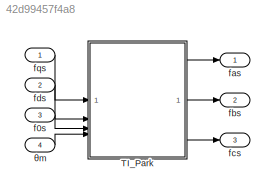
MODEL slx_42d99457f4a8
KIND model
CONFIG AbsTol = auto
CONFIG EnableMultiTasking = off
CONFIG FixedStep = auto
CONFIG MaxStep = auto
CONFIG MinStep = auto
CONFIG RelTol = 1e-3
CONFIG SampleTimeConstraint = Unconstrained
CONFIG SolverName = VariableStepAuto
CONFIG StartTime = 0.0
CONFIG StopTime = 10.0
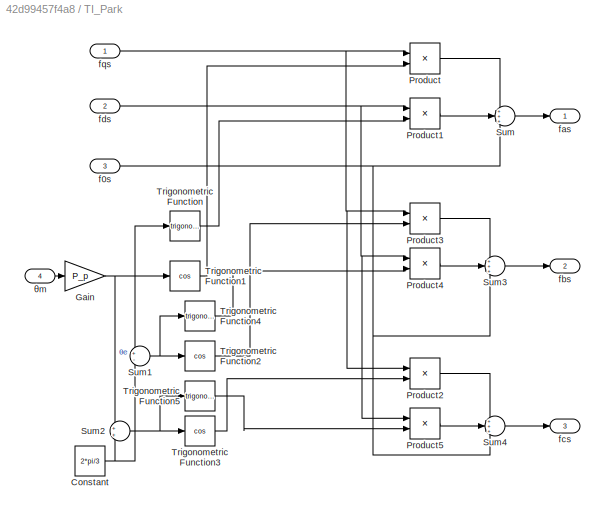
BLOCK [SubSystem] TI_Park
BLOCK [Constant] TI_Park/Constant
  Value = 2*pi/3
BLOCK [Gain] TI_Park/Gain
  Gain = P_p
BLOCK [Product] TI_Park/Product
BLOCK [Product] TI_Park/Product1
BLOCK [Product] TI_Park/Product2
BLOCK [Product] TI_Park/Product3
BLOCK [Product] TI_Park/Product4
BLOCK [Product] TI_Park/Product5
BLOCK [Sum] TI_Park/Sum
  Inputs = +++
BLOCK [Sum] TI_Park/Sum1
  Inputs = +-
BLOCK [Sum] TI_Park/Sum2
BLOCK [Sum] TI_Park/Sum3
  Inputs = +++
BLOCK [Sum] TI_Park/Sum4
  Inputs = +++
BLOCK [Trigonometry] TI_Park/Trigonometric Function
BLOCK [Trigonometry] TI_Park/Trigonometric Function1
  Operator = cos
BLOCK [Trigonometry] TI_Park/Trigonometric Function2
  Operator = cos
BLOCK [Trigonometry] TI_Park/Trigonometric Function3
  Operator = cos
BLOCK [Trigonometry] TI_Park/Trigonometric Function4
BLOCK [Trigonometry] TI_Park/Trigonometric Function5
BLOCK [Inport] TI_Park/f0s
  Port = 3
BLOCK [Outport] TI_Park/fas
BLOCK [Outport] TI_Park/fbs
  Port = 2
BLOCK [Outport] TI_Park/fcs
  Port = 3
BLOCK [Inport] TI_Park/fds
  Port = 2
BLOCK [Inport] TI_Park/fqs
BLOCK [Inport] TI_Park/θm
  Port = 4
BLOCK [Inport] f0s
  Port = 3
BLOCK [Outport] fas
BLOCK [Outport] fbs
  Port = 2
BLOCK [Outport] fcs
  Port = 3
BLOCK [Inport] fds
  Port = 2
BLOCK [Inport] fqs
BLOCK [Inport] θm
  Port = 4
NET TI_Park/Constant:1 -> TI_Park/Sum1:2, TI_Park/Sum2:2
NET TI_Park/Gain:1 -> TI_Park/Sum1:1, TI_Park/Sum2:1, TI_Park/Trigonometric Function1:1, TI_Park/Trigonometric Function:1
LINE TI_Park/Product1:1 -> TI_Park/Sum:2
LINE TI_Park/Product2:1 -> TI_Park/Sum4:1
LINE TI_Park/Product3:1 -> TI_Park/Sum3:1
LINE TI_Park/Product4:1 -> TI_Park/Sum3:2
LINE TI_Park/Product5:1 -> TI_Park/Sum4:2
LINE TI_Park/Product:1 -> TI_Park/Sum:1
NET TI_Park/Sum1:1 -> TI_Park/Trigonometric Function2:1, TI_Park/Trigonometric Function4:1
NET TI_Park/Sum2:1 -> TI_Park/Trigonometric Function3:1, TI_Park/Trigonometric Function5:1
LINE TI_Park/Sum3:1 -> TI_Park/fbs:1
LINE TI_Park/Sum4:1 -> TI_Park/fcs:1
LINE TI_Park/Sum:1 -> TI_Park/fas:1
LINE TI_Park/Trigonometric Function1:1 -> TI_Park/Product:2
LINE TI_Park/Trigonometric Function2:1 -> TI_Park/Product3:2
LINE TI_Park/Trigonometric Function3:1 -> TI_Park/Product2:2
LINE TI_Park/Trigonometric Function4:1 -> TI_Park/Product4:2
LINE TI_Park/Trigonometric Function5:1 -> TI_Park/Product5:2
LINE TI_Park/Trigonometric Function:1 -> TI_Park/Product1:2
NET TI_Park/f0s:1 -> TI_Park/Sum3:3, TI_Park/Sum4:3, TI_Park/Sum:3
NET TI_Park/fds:1 -> TI_Park/Product1:1, TI_Park/Product4:1, TI_Park/Product5:1
NET TI_Park/fqs:1 -> TI_Park/Product2:1, TI_Park/Product3:1, TI_Park/Product:1
LINE TI_Park/θm:1 -> TI_Park/Gain:1
LINE TI_Park:1 -> fas:1
LINE TI_Park:2 -> fbs:1
LINE TI_Park:3 -> fcs:1
LINE f0s:1 -> TI_Park:3
LINE fds:1 -> TI_Park:2
LINE fqs:1 -> TI_Park:1
LINE θm:1 -> TI_Park:4
note: NET lines group one-source signal fan-out (src -> all destinations, sorted); 1:1 wires keep LINE
